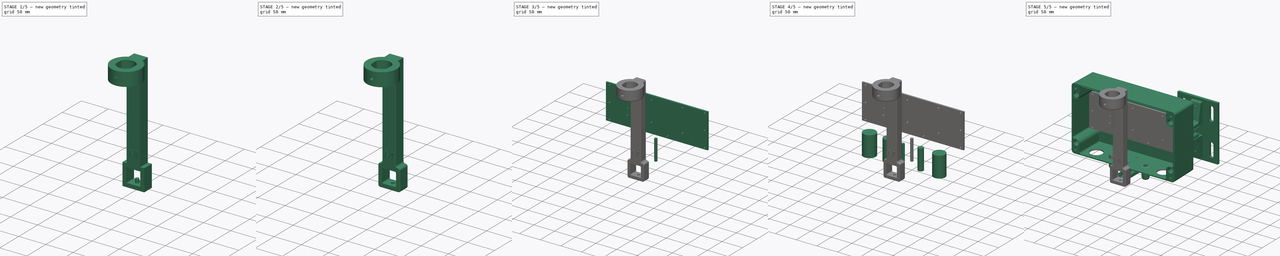
[diagram: build sequence overview — one tinted view per stage of 5, left to right]
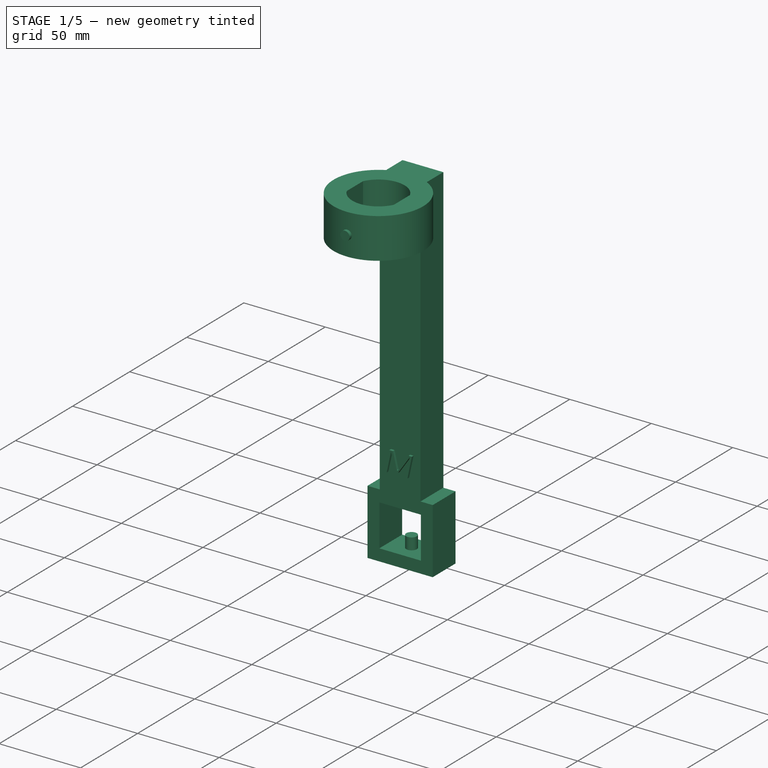
[diagram: stage 1 of 5 — iso view after this stage's code; geometry added in this stage tinted green]
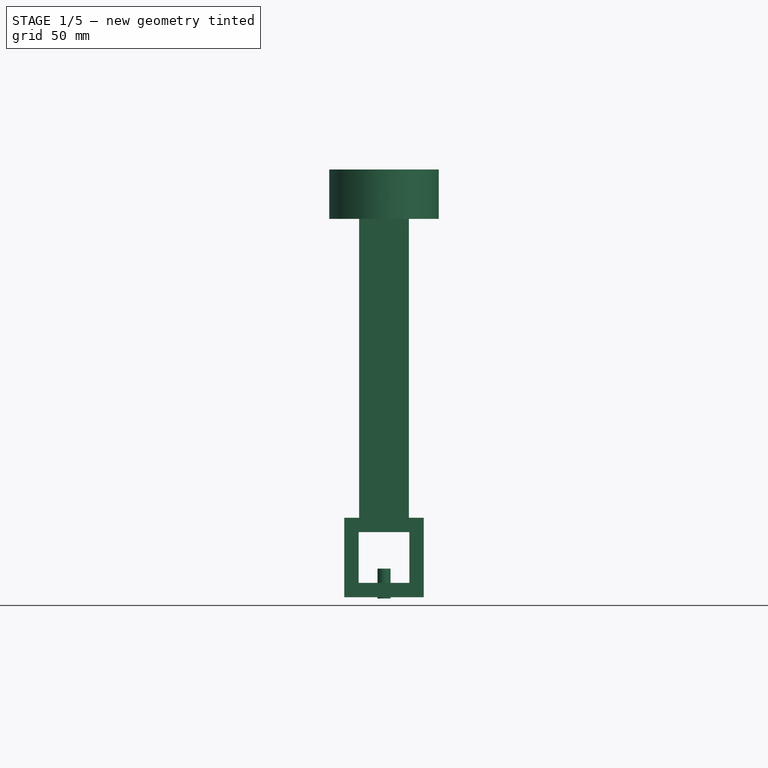
[diagram: stage 1 of 5 — front view after this stage's code; geometry added in this stage tinted green]
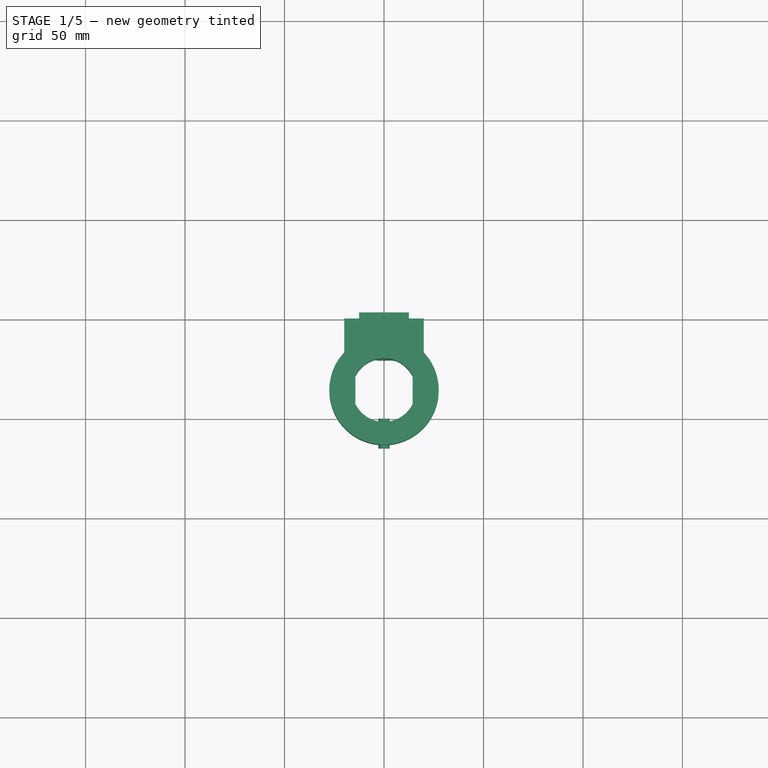
[diagram: stage 1 of 5 — top view after this stage's code; geometry added in this stage tinted green]
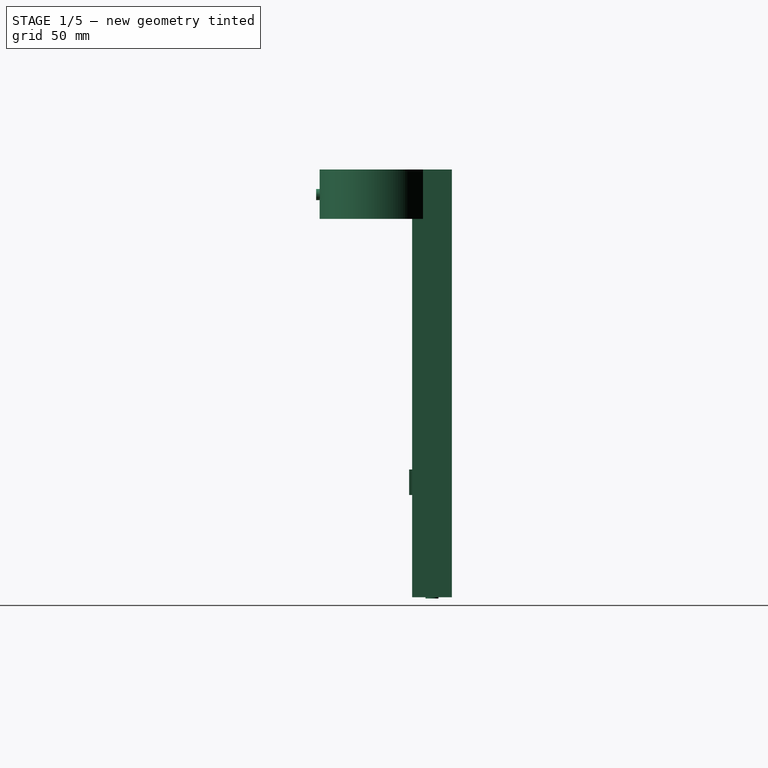
[diagram: stage 1 of 5 — right view after this stage's code; geometry added in this stage tinted green]
FCSTD DOCUMENT  (FreeCAD 0.20R29410 (Git))
Label: poloNodeVA
License: All rights reserved
LicenseURL: http://en.wikipedia.org/wiki/All_rights_reserved
objects: Part::Feature×28, Part::Cylinder×9, Part::MultiFuse×7, Part::Fillet×7, Part::Extrusion×5, Sketcher::SketchObject×4, App::Part×3, Part::Cut×2, Part::Part2DObjectPython×1
note: 63 computed .brp shape members not serialized (recipe doc carries the construction recipe); baked Part::Feature solids carry a one-line shape summary decoded from their .brp

FEATURE [Sketcher::SketchObject] Sketch002
  FullyConstrained = true
  Placement = pos=(0,0,0) rot=(1,0,0;1.5708rad)
  sketch-geometry (12):
    g0: LineSegment StartX=-20 StartY=-121.4 StartZ=0 EndX=-20 EndY=-161.4 EndZ=0
    g1: LineSegment StartX=-20 StartY=-161.4 StartZ=0 EndX=20 EndY=-161.4 EndZ=0
    g2: LineSegment StartX=20 StartY=-161.4 StartZ=0 EndX=20 EndY=-121.4 EndZ=0
    g3: LineSegment StartX=-20 StartY=-121.4 StartZ=0 EndX=-12.5 EndY=-121.4 EndZ=0
    g4: LineSegment StartX=20 StartY=-121.4 StartZ=0 EndX=12.5 EndY=-121.4 EndZ=0
    g5: LineSegment StartX=12.5 StartY=-121.4 StartZ=0 EndX=12.5 EndY=53.6 EndZ=0
    g6: LineSegment StartX=12.5 StartY=53.6 StartZ=0 EndX=-12.5 EndY=53.6 EndZ=0
    g7: LineSegment StartX=-12.5 StartY=53.6 StartZ=0 EndX=-12.5 EndY=-121.4 EndZ=0
    g8: LineSegment StartX=-12.75 StartY=-128.65 StartZ=0 EndX=12.75 EndY=-128.65 EndZ=0
    g9: LineSegment StartX=12.75 StartY=-128.65 StartZ=0 EndX=12.75 EndY=-154.15 EndZ=0
    g10: LineSegment StartX=12.75 StartY=-154.15 StartZ=0 EndX=-12.75 EndY=-154.15 EndZ=0
    g11: LineSegment StartX=-12.75 StartY=-154.15 StartZ=0 EndX=-12.75 EndY=-128.65 EndZ=0
  constraints (36):
    c: Vertical(g0)
    c: Coincident(g1,g0)
    c: Horizontal(g1)
    c: Coincident(g2,g1)
    c: Vertical(g2)
    c: Coincident(g3,g0)
    c: Horizontal(g3)
    c: Coincident(g5,g4)
    c: Vertical(g5)
    c: Coincident(g6,g5)
    c: Coincident(g7,g6)
    c: Vertical(g7)
    c: Coincident(g3,g7)
    c: Coincident(g2,g4)
    c: Horizontal(g4)
    c: DistanceX(g0) = -20
    c: DistanceX(g1) = 20
    c: DistanceX(g0,g3) = 7.5
    c: DistanceX(g4,g2) = 7.5
    c: DistanceY(g0) = -161.4
    c: DistanceY(g0,g0) = 40
    c: Horizontal(g4,g3)
    c: Horizontal(g6)
    c: Coincident(g8,g9)
    c: Coincident(g9,g10)
    c: Coincident(g10,g11)
    c: Coincident(g11,g8)
    c: Horizontal(g8)
    c: Horizontal(g10)
    c: Vertical(g9)
    c: Vertical(g11)
    c: DistanceX(g0,g10) = 7.25
    c: DistanceX(g9,g1) = 7.25
    c: DistanceY(g0,g10) = 7.25
    c: DistanceY(g8,g3) = 7.25
    c: DistanceY(g3,g6) = 175
FEATURE [Part::Extrusion] Extrude002
  Base = -> Sketch002
  Dir = (0,-1,-3e-16)
  DirMode = 2
  FaceMakerClass = Part::FaceMakerBullseye
  LengthFwd = 20
  LengthRev = 0
  Solid = true
  Symmetric = false
FEATURE [Sketcher::SketchObject] Sketch003
  FullyConstrained = true
  Placement = pos=(0,0,23.8) rot=(0,0,1;0rad)
  sketch-geometry (5):
    g0: Circle CenterX=0 CenterY=-36 CenterZ=0 NormalX=0 NormalY=0 NormalZ=1 AngleXU=0 Radius=27.5
    g1: LineSegment StartX=-14.3875 StartY=-29 StartZ=0 EndX=-14.3875 EndY=-43 EndZ=0
    g2: LineSegment StartX=14.3875 StartY=-29 StartZ=0 EndX=14.3875 EndY=-43 EndZ=0
    g3: ArcOfCircle CenterX=0 CenterY=-36 CenterZ=0 NormalX=0 NormalY=0 NormalZ=1 AngleXU=0 Radius=16 StartAngle=0.452817 EndAngle=2.68878
    g4: ArcOfCircle CenterX=0 CenterY=-36 CenterZ=0 NormalX=0 NormalY=0 NormalZ=1 AngleXU=0 Radius=16 StartAngle=3.59441 EndAngle=5.83037
  constraints (15):
    c: Vertical(g1)
    c: Vertical(g2)
    c: Horizontal(g2,g1)
    c: Coincident(g3,g0)
    c: Coincident(g3,g1)
    c: Coincident(g4,g0)
    c: Coincident(g4,g1)
    c: Coincident(g2,g4)
    c: Coincident(g2,g3)
    c: DistanceY(g0,g1) = 7
    c: Diameter(g3) = 32
    c: DistanceX(g0) = 0
    c: DistanceY(g1,g1) = 14
    c: Diameter(g0) = 55
    c: DistanceY(g0) = -36
FEATURE [Part::Extrusion] Extrude003
  Base = -> Sketch003
  Dir = (0,0,1)
  DirMode = 2
  FaceMakerClass = Part::FaceMakerBullseye
  LengthFwd = 24.8
  LengthRev = 0
  Placement = pos=(0,-3,5) rot=(0,0,1;0rad)
  Solid = true
  Symmetric = false
FEATURE [Part::Cylinder] Cylinder039  label="m4HeatSetCut"
  Angle = 360
  AttacherType = Attacher::AttachEngine3D
  FirstAngle = 0
  Height = 15
  Placement = pos=(0,-53.25,41) rot=(1,0,0;1.5708rad)
  Radius = 2.8
  SecondAngle = 0
FEATURE [Part::Cylinder] Cylinder040  label="Cylinder"
  Angle = 360
  AttacherType = Attacher::AttachEngine3D
  FirstAngle = 0
  Height = 15
  Placement = pos=(0,-10,-162) rot=(0,0,1;0rad)
  Radius = 3.25
  SecondAngle = 0
FEATURE [Part::Feature] Part__Feature049  label="47065T139_T-Slotted Framing"
  Placement = pos=(0,-10,-158.5) rot=(0.57735,-0.57735,0.57735;4.18862rad)
  shape: bbox 11.25 x 25.4 x 17.44 mm, 56 faces, 2 solids (baked)
FEATURE [Part::MultiFuse] Fusion014  label="airMarCuts"
  Shapes = -> [Cylinder040,Cylinder039]
FEATURE [Part::Part2DObjectPython] ShapeString  # Draft 2D object (typed FeaturePython)
  FontFile = <userpath>/gitHubRepos/3DMints2023/mslns/fonts/afta-sans/AftaSansThin-Italic.otf
  MakeFace = true
  Placement = pos=(-10,-20,-77) rot=(1,0,0;1.5708rad)
  Size = 8
  String = M
  Tracking = 0
FEATURE [Part::Extrusion] Extrude004
  Base = -> ShapeString
  Dir = (0,-1,2e-16)
  DirMode = 2
  FaceMakerClass = Part::FaceMakerBullseye
  LengthFwd = 2
  LengthRev = 0
  Placement = pos=(0,0.5,-33) rot=(0,0,1;0rad)
  Solid = false
  Symmetric = false
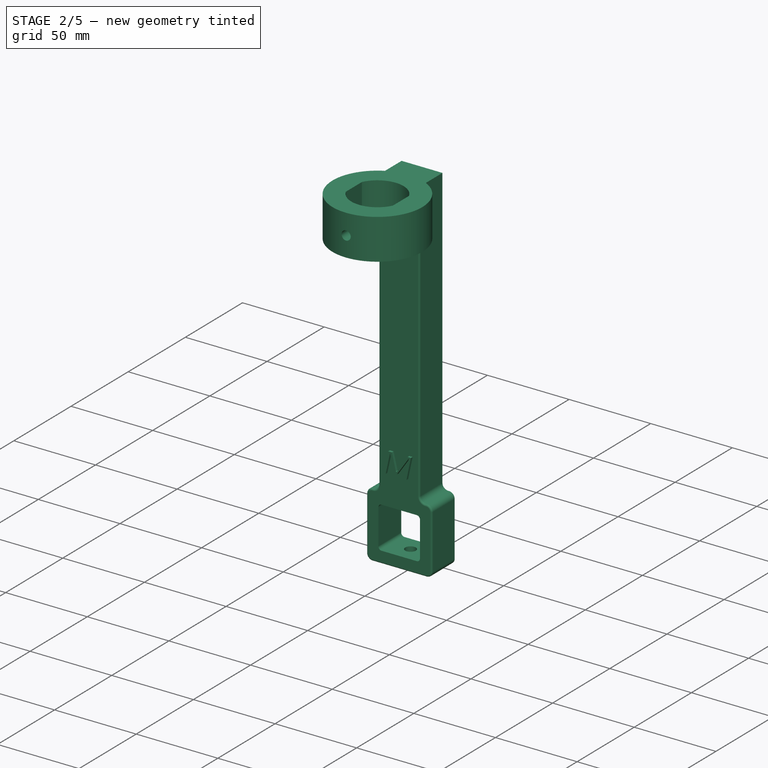
[diagram: stage 2 of 5 — iso view after this stage's code; geometry added in this stage tinted green]
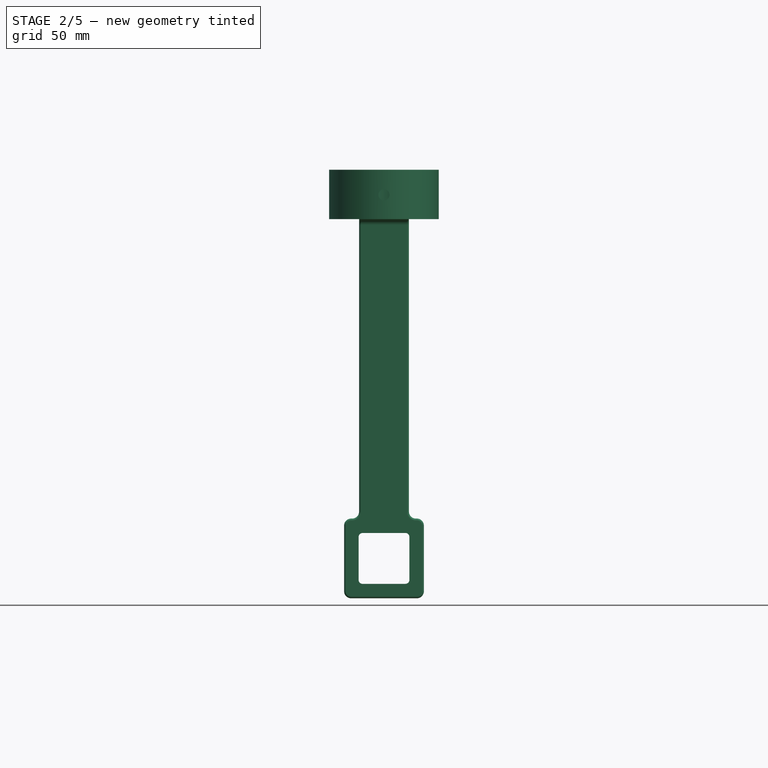
[diagram: stage 2 of 5 — front view after this stage's code; geometry added in this stage tinted green]
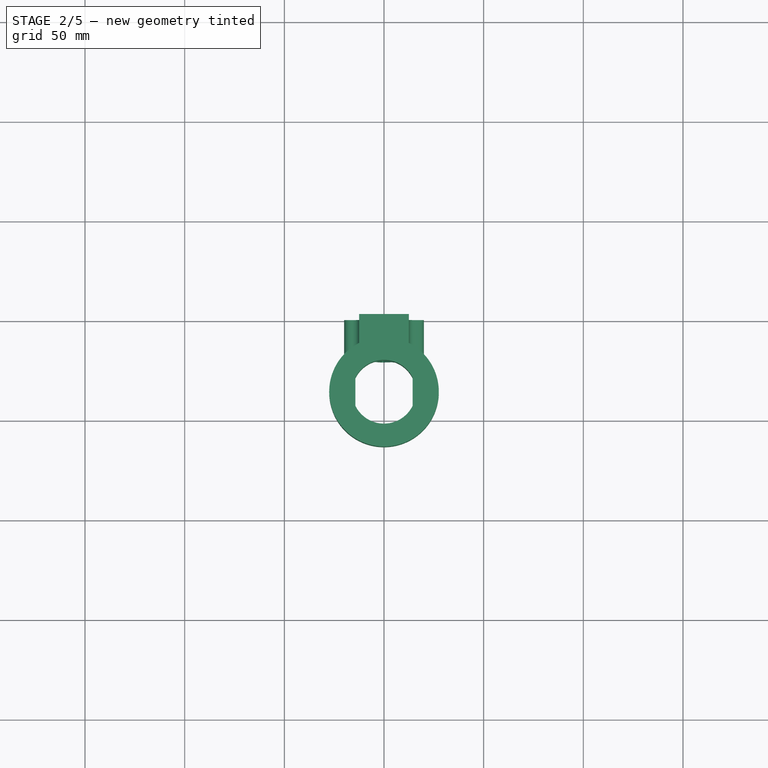
[diagram: stage 2 of 5 — top view after this stage's code; geometry added in this stage tinted green]
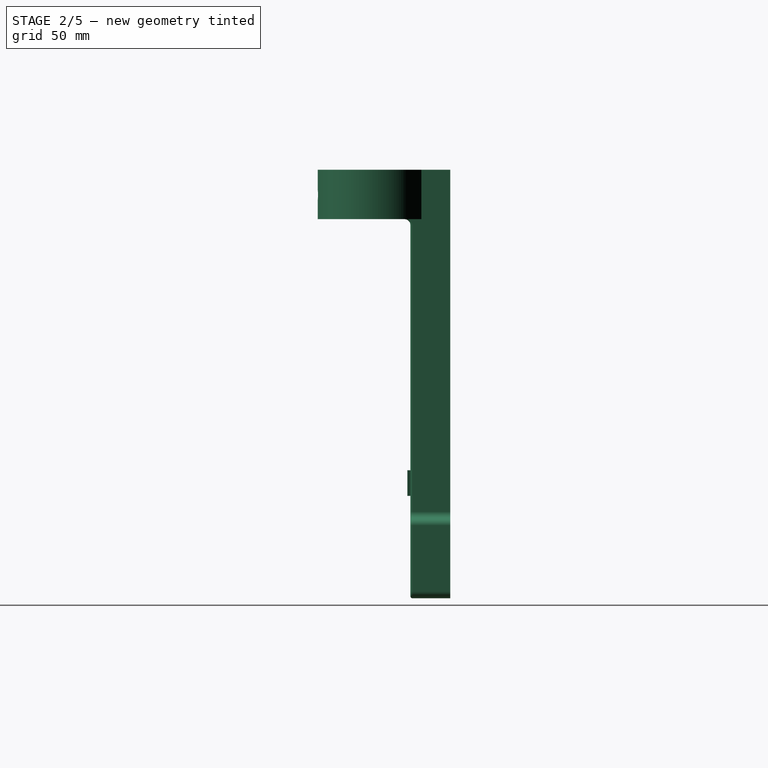
[diagram: stage 2 of 5 — right view after this stage's code; geometry added in this stage tinted green]
FEATURE [Part::MultiFuse] Fusion013  label="airMarHolder"
  Shapes = -> [Extrude002,Extrude003]
FEATURE [Part::Cut] Cut001  label="airMarHolder001"
  Base = -> Fusion013
  Tool = -> Fusion014
FEATURE [Part::Fillet] Fillet
  Base = -> Cut001
  Edges = 1 edges r=3: [Edge24]
FEATURE [Part::Fillet] Fillet001
  Base = -> Fillet
  Edges = 6 edges r=3.5: [Edge19,Edge23,Edge25,Edge31,Edge33,Edge35]
FEATURE [Part::Fillet] Fillet002
  Base = -> Fillet001
  Edges = 4 edges r=2: [Edge57,Edge58,Edge60,Edge62]
FEATURE [Part::Fillet] Fillet003
  Base = -> Fillet002
  Edges = 2 edges r=1: [Edge40,Edge75]
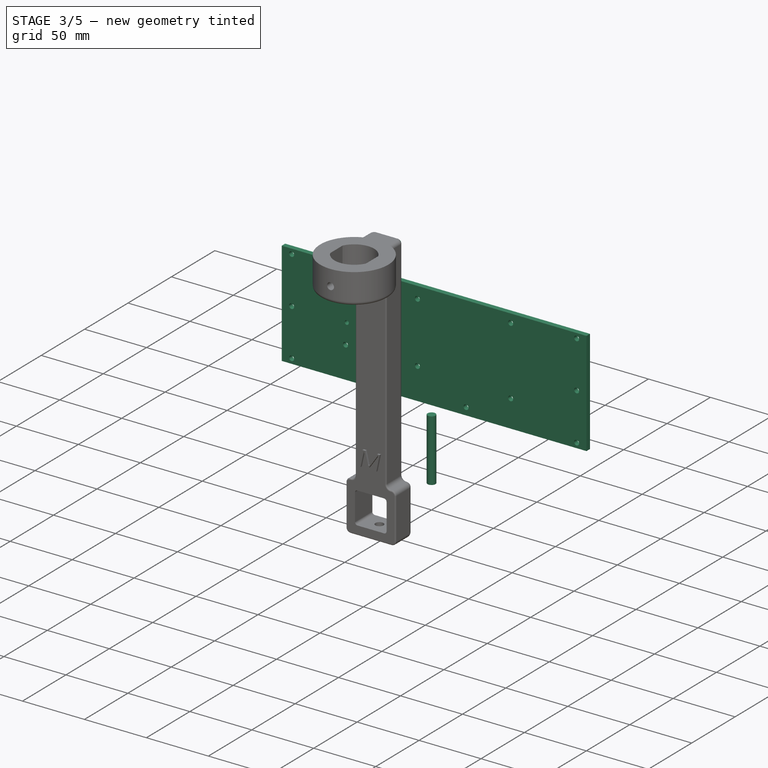
[diagram: stage 3 of 5 — iso view after this stage's code; geometry added in this stage tinted green]
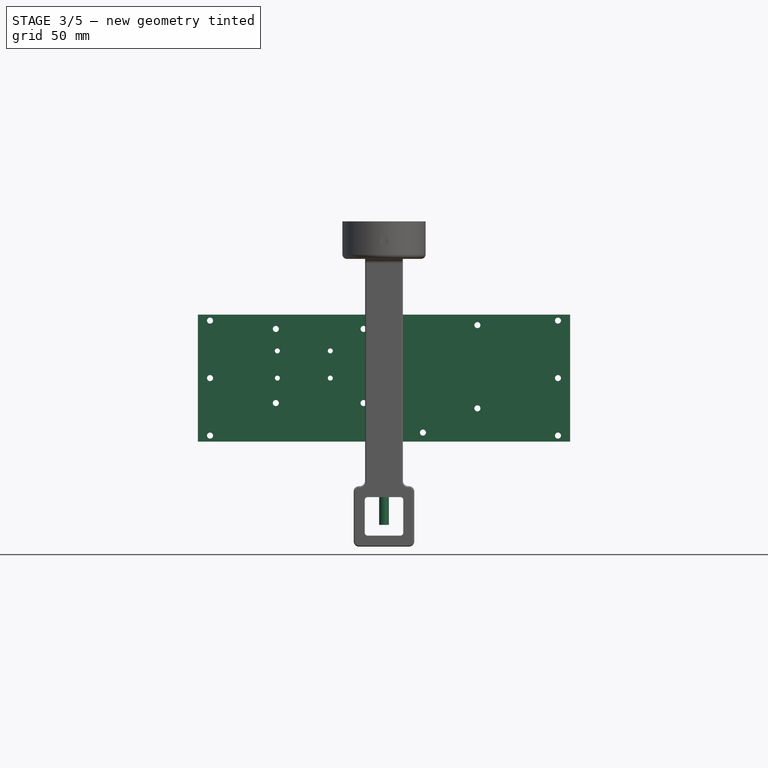
[diagram: stage 3 of 5 — front view after this stage's code; geometry added in this stage tinted green]
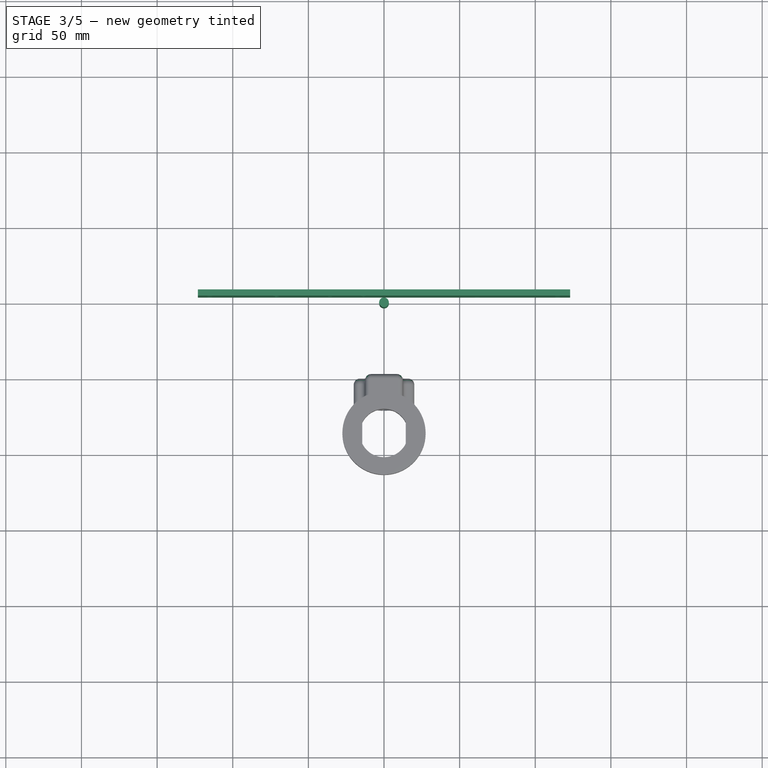
[diagram: stage 3 of 5 — top view after this stage's code; geometry added in this stage tinted green]
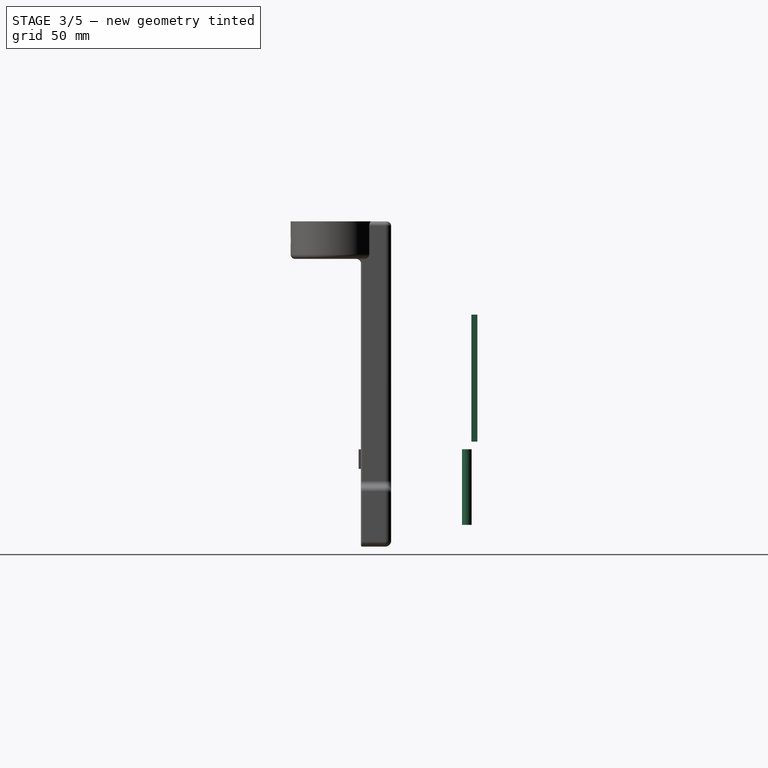
[diagram: stage 3 of 5 — right view after this stage's code; geometry added in this stage tinted green]
FEATURE [Part::Cylinder] Cylinder038  label="m5Cut001"
  Angle = 360
  AttacherType = Attacher::AttachEngine3D
  FirstAngle = 0
  Height = 50
  Placement = pos=(0,50,-147) rot=(0,0,1;0rad)
  Radius = 3.2
  SecondAngle = 0
FEATURE [Part::Feature] Part__Feature  label="CUI_VGS-35C-12"
  Placement = pos=(60,36,-41) rot=(1,0,0;3.14159rad)
  shape: bbox 82.03 x 30.06 x 100 mm, 2215 faces, 10 solids (baked)
FEATURE [Part::Feature] Part__Feature035  label="Open CASCADE STEP translator 7.4 2.1.1"
  shape: bbox 8.3 x 1.9 x 1 mm, 10 faces, 0 solids (baked)
FEATURE [Part::Feature] Part__Feature036  label="Open CASCADE STEP translator 7.4 2.1.2"
  shape: bbox 12.5 x 10 x 1.5 mm, 6 faces, 0 solids (baked)
FEATURE [Part::Feature] Part__Feature037  label="Open CASCADE STEP translator 7.4 2.1.3"
  shape: bbox 12.5 x 10 x 1.5 mm, 6 faces, 0 solids (baked)
FEATURE [Part::Feature] Part__Feature038  label="Open CASCADE STEP translator 7.4 2.1.4"
  shape: bbox 12.5 x 10 x 1.5 mm, 6 faces, 0 solids (baked)
FEATURE [Part::Feature] Part__Feature039  label="Open CASCADE STEP translator 7.4 2.1.5"
  shape: bbox 12.5 x 10 x 1.5 mm, 6 faces, 0 solids (baked)
FEATURE [Part::Feature] Part__Feature040  label="Open CASCADE STEP translator 7.4 2.1.6"
  shape: bbox 89.5 x 57.1 x 20.65 mm, 2741 faces, 0 solids (baked)
FEATURE [App::Part] Open_CASCADE_STEP_translator_7_4_2_1  label="Open CASCADE STEP translator 7.4 2.1"
  Group = -> [Part__Feature035,Part__Feature036,Part__Feature037,Part__Feature038,Part__Feature039,Part__Feature040]
  Origin = -> Origin
FEATURE [App::Part] Open_CASCADE_STEP_translator_7_4_2  label="c4"
  Group = -> [Open_CASCADE_STEP_translator_7_4_2_1]
  Origin = -> Origin001
  Placement = pos=(-75,15,-70) rot=(-1,0,0;4.71239rad)
FEATURE [Part::Feature] Part__Feature041  label="MainBoard"
  shape: bbox 50 x 23 x 1.8 mm, 90 faces (baked)
FEATURE [Part::Feature] Part__Feature042  label="USB Type C Port (SMD Type)"
  Placement = pos=(-18.7,0.12,3.4) rot=(0.707107,-0.707107,0;3.14159rad)
  shape: bbox 7.901 x 8.941 x 4.201 mm, 394 faces, 24 solids (baked)
FEATURE [Part::Feature] Part__Feature043  label="LoRaSTM32Chip"
  Placement = pos=(8.97,0,1.8) rot=(0,0,1;0rad)
  shape: bbox 12 x 12 x 2.5 mm, 68 faces (baked)
FEATURE [Part::Feature] Part__Feature044  label="E10_433M_SMA122"
  Placement = pos=(13,-2.15,1.4) rot=(0,0,1;0rad)
  shape: bbox 11.33 x 1.55 x 1.55 mm, 34 faces (baked)
FEATURE [Part::Feature] Part__Feature045  label="E10_433M_SMA123"
  Placement = pos=(13,-2.15,1.4) rot=(0,0,1;0rad)
  shape: bbox 13.33 x 6.493 x 6.493 mm, 59 faces (baked)
FEATURE [Part::Feature] Part__Feature046  label="CP2012"
  Placement = pos=(-8.75,0.13,1.82) rot=(0,0,1;0rad)
  shape: bbox 4 x 4 x 0.7 mm, 6 faces (baked)
FEATURE [Part::Feature] Part__Feature047  label="u.Fl Antenna Connector - 523-A-1JB"
  Placement = pos=(24.2,5.8,1.8) rot=(0,0.707107,0.707107;3.14159rad)
  shape: bbox 3.1 x 3 x 1.25 mm, 82 faces, 5 solids (baked)
FEATURE [Part::Feature] Part__Feature048  label="Top Traces"
  shape: bbox 49.4 x 23 x 0.02 mm, 7906 faces, 207 solids (baked)
FEATURE [App::Part] LoRa_E5_Mini  label="LoRa-E5-Mini"
  Group = -> [Part__Feature041,Part__Feature042,Part__Feature043,Part__Feature044,Part__Feature045,Part__Feature046,Part__Feature047,Part__Feature048]
  Origin = -> Origin002
  Placement = pos=(-48,50,-41) rot=(0,-0.707107,0.707107;3.14159rad)
FEATURE [Part::Feature] Part__Feature034  label="WiFiAntennaGland001"
  Placement = pos=(-85.25,25,-120) rot=(-1,0,0;1.5708rad)
  shape: bbox 36.99 x 36.69 x 48.04 mm, 518 faces, 0 solids (baked)
FEATURE [Sketcher::SketchObject] Sketch001
  FullyConstrained = true
  Placement = pos=(0,57,0) rot=(1,0,0;1.5708rad)
  sketch-geometry (21):
    g0: LineSegment StartX=-123 StartY=-8 StartZ=0 EndX=123 EndY=-8 EndZ=0
    g1: LineSegment StartX=123 StartY=-8 StartZ=0 EndX=123 EndY=-92 EndZ=0
    g2: LineSegment StartX=123 StartY=-92 StartZ=0 EndX=-123 EndY=-92 EndZ=0
    g3: LineSegment StartX=-123 StartY=-92 StartZ=0 EndX=-123 EndY=-8 EndZ=0
    g4: Circle CenterX=-115 CenterY=-12 CenterZ=0 NormalX=0 NormalY=0 NormalZ=1 AngleXU=0 Radius=2
    g5: Circle CenterX=-115 CenterY=-50 CenterZ=0 NormalX=0 NormalY=0 NormalZ=1 AngleXU=0 Radius=2
    g6: Circle CenterX=-115 CenterY=-88 CenterZ=0 NormalX=0 NormalY=0 NormalZ=1 AngleXU=0 Radius=2
    g7: Circle CenterX=115 CenterY=-88 CenterZ=0 NormalX=0 NormalY=0 NormalZ=1 AngleXU=0 Radius=2
    g8: Circle CenterX=115 CenterY=-50 CenterZ=0 NormalX=0 NormalY=0 NormalZ=1 AngleXU=0 Radius=2
    g9: Circle CenterX=115 CenterY=-12 CenterZ=0 NormalX=0 NormalY=0 NormalZ=1 AngleXU=0 Radius=2
    g10: Circle CenterX=-71.5 CenterY=-17.5 CenterZ=0 NormalX=0 NormalY=0 NormalZ=1 AngleXU=0 Radius=2
    g11: Circle CenterX=-13.5 CenterY=-17.5 CenterZ=0 NormalX=0 NormalY=0 NormalZ=1 AngleXU=0 Radius=2
    g12: Circle CenterX=-13.5 CenterY=-66.5 CenterZ=0 NormalX=0 NormalY=0 NormalZ=1 AngleXU=0 Radius=2
    g13: Circle CenterX=-71.5 CenterY=-66.5 CenterZ=0 NormalX=0 NormalY=0 NormalZ=1 AngleXU=0 Radius=2
    g14: Circle CenterX=61.75 CenterY=-70 CenterZ=0 NormalX=0 NormalY=0 NormalZ=1 AngleXU=0 Radius=2
    g15: Circle CenterX=61.75 CenterY=-15 CenterZ=0 NormalX=0 NormalY=0 NormalZ=1 AngleXU=0 Radius=2
    g16: Circle CenterX=-35.5 CenterY=-32 CenterZ=0 NormalX=0 NormalY=0 NormalZ=1 AngleXU=0 Radius=1.65
    g17: Circle CenterX=-35.5 CenterY=-50 CenterZ=0 NormalX=0 NormalY=0 NormalZ=1 AngleXU=0 Radius=1.65
    g18: Circle CenterX=-70.5 CenterY=-32 CenterZ=0 NormalX=0 NormalY=0 NormalZ=1 AngleXU=0 Radius=1.65
    g19: Circle CenterX=-70.5 CenterY=-50 CenterZ=0 NormalX=0 NormalY=0 NormalZ=1 AngleXU=0 Radius=1.65
    g20: Circle CenterX=25.75 CenterY=-86 CenterZ=0 NormalX=0 NormalY=0 NormalZ=1 AngleXU=0 Radius=2
  constraints (59):
    c: Coincident(g0,g1)
    c: Coincident(g1,g2)
    c: Coincident(g2,g3)
    c: Coincident(g3,g0)
    c: Horizontal(g0)
    c: Horizontal(g2)
    c: Vertical(g1)
    c: Vertical(g3)
    c: DistanceX(g2) = -123
    c: DistanceX(g1) = 123
    c: DistanceY(g3,g3) = 84
    c: DistanceY(g0) = -8
    c: DistanceX(g6) = -115
    c: DistanceX(g5,g6) = 0
    c: DistanceX(g5,g4) = 0
    c: DistanceY(g6) = -88
    c: DistanceY(g4) = -12
    c: DistanceY(g5) = -50
    c: DistanceX(g7) = 115
    c: DistanceX(g7,g8) = 0
    c: DistanceX(g8,g9) = 0
    c: DistanceY(g8,g5) = 0
    c: DistanceY(g7,g6) = 0
    c: DistanceY(g9,g4) = 0
    c: Equal(g4, g5-g9) x5
    c: Radius(g4) = 2
    c: DistanceX(g13) = -71.5
    c: DistanceY(g13) = -66.5
    c: DistanceY(g13,g12) = 0
    c: DistanceX(g13,g12) = 58
    c: DistanceY(g13,g10) = 49
    c: DistanceY(g11,g10) = 0
    c: DistanceY(g19,g17) = 0
    c: DistanceX(g19,g18) = 0
    c: DistanceY(g18,g16) = 0
    c: DistanceX(g17,g16) = 0
    c: DistanceY(g19) = -50
    c: DistanceX(g19) = -70.5
    c: DistanceX(g19,g17) = 35
    c: DistanceY(g17,g16) = 18
    c: Equal(g19,g17)
    c: Equal(g19,g16)
    c: Equal(g19,g18)
    c: Diameter(g19) = 3.3
    c: Equal(g10,g13)
    c: Equal(g10,g12)
    c: Equal(g10,g11)
    c: Diameter(g10) = 4
    c: DistanceX(g10,g13) = 0
    c: DistanceX(g11,g12) = 0
    c: DistanceX(g14) = 61.75
    c: DistanceX(g15,g14) = 0
    c: Equal(g14,g15)
    c: Diameter(g14) = 4
    c: DistanceY(g15) = -15
    c: DistanceY(g14,g15) = 55
    c: Diameter(g20) = 4
    c: DistanceX(g20,g14) = 36
    c: DistanceY(g20,g14) = 16
FEATURE [Part::Extrusion] Extrude001
  Base = -> Sketch001
  Dir = (0,-1,2e-16)
  DirMode = 2
  FaceMakerClass = Part::FaceMakerBullseye
  LengthFwd = 4
  LengthRev = 0
  Solid = true
  Symmetric = false
FEATURE [Part::Fillet] Fillet004
  Base = -> Fillet003
  Edges = 2 edges r=4: [Edge91,Edge96]
FEATURE [Part::Fillet] Fillet005
  Base = -> Fillet004
  Edges = 1 edges r=3: [Edge18]
FEATURE [Part::Fillet] Fillet006  label="airMarHolder002"
  Base = -> Fillet005
  Edges = 1 edges r=3: [Edge26]
FEATURE [Part::MultiFuse] Fusion015  label="airMarHolder003"
  Shapes = -> [Fillet006,Extrude004]
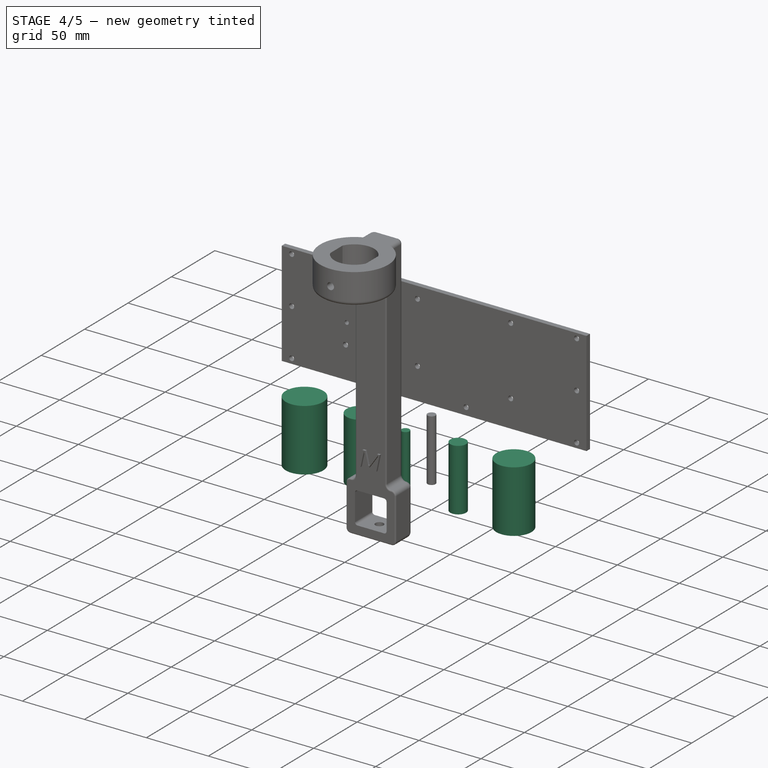
[diagram: stage 4 of 5 — iso view after this stage's code; geometry added in this stage tinted green]
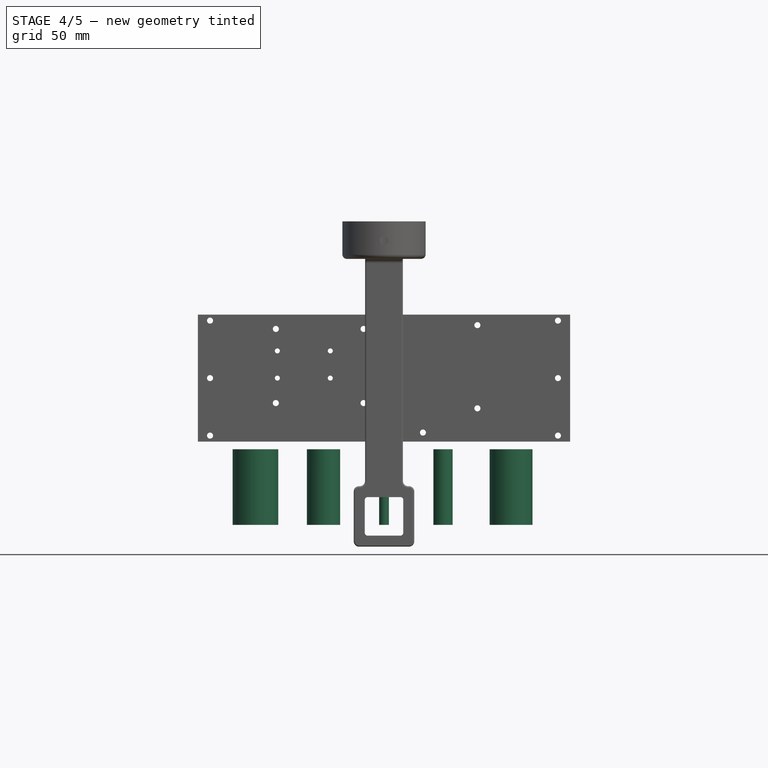
[diagram: stage 4 of 5 — front view after this stage's code; geometry added in this stage tinted green]
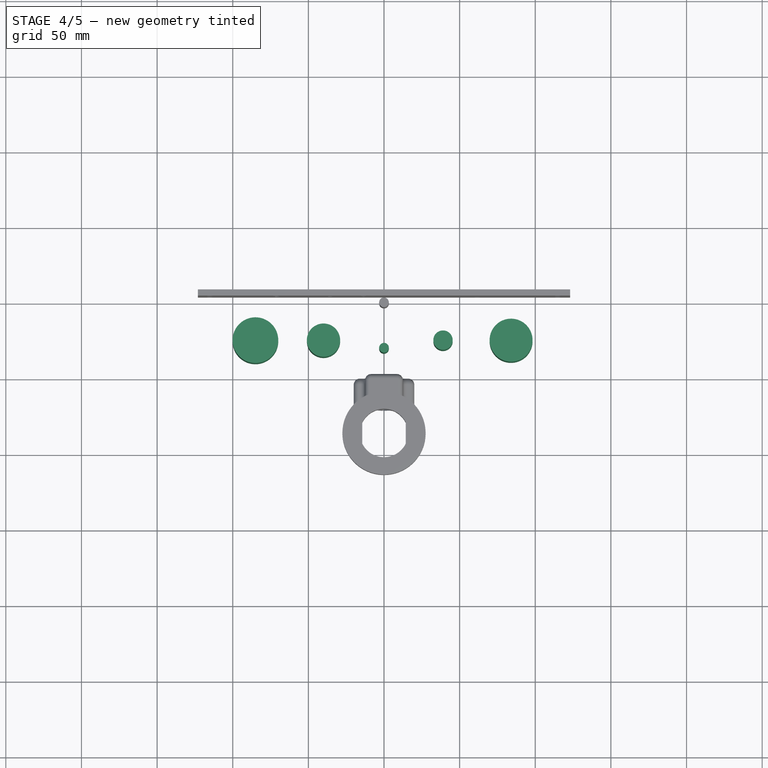
[diagram: stage 4 of 5 — top view after this stage's code; geometry added in this stage tinted green]
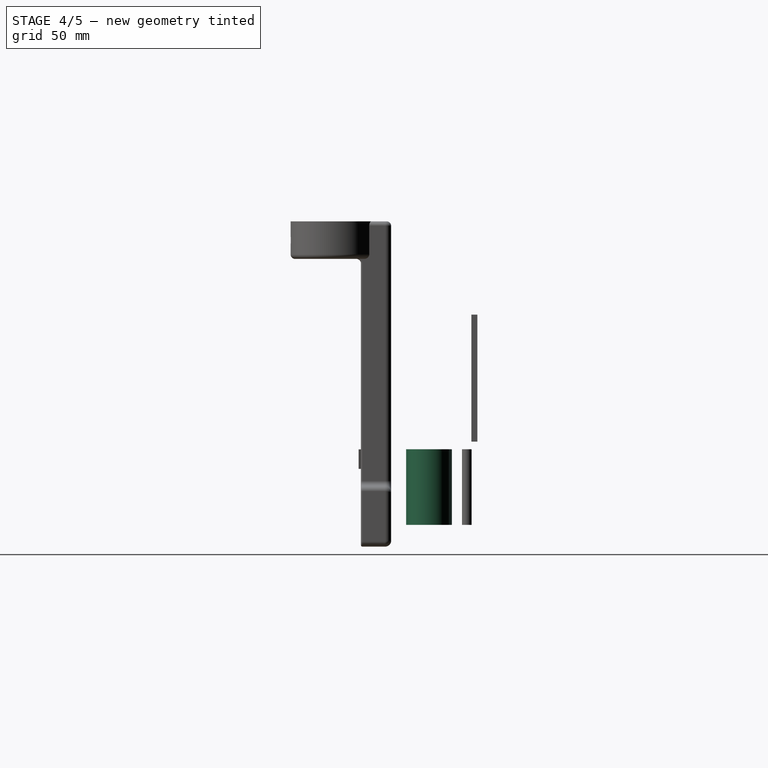
[diagram: stage 4 of 5 — right view after this stage's code; geometry added in this stage tinted green]
FEATURE [Part::Cylinder] Cylinder033  label="EthernetCut"
  Angle = 360
  AttacherType = Attacher::AttachEngine3D
  FirstAngle = 0
  Height = 50
  Placement = pos=(-85,25,-147) rot=(0,0,1;0rad)
  Radius = 15.1
  SecondAngle = 0
FEATURE [Part::Cylinder] Cylinder034  label="PowerCut"
  Angle = 360
  AttacherType = Attacher::AttachEngine3D
  FirstAngle = 0
  Height = 50
  Placement = pos=(-40,25,-147) rot=(0,0,1;0rad)
  Radius = 11
  SecondAngle = 0
FEATURE [Part::Cylinder] Cylinder035  label="pg7Cut"
  Angle = 360
  AttacherType = Attacher::AttachEngine3D
  FirstAngle = 0
  Height = 50
  Placement = pos=(39,25,-147) rot=(0,0,1;0rad)
  Radius = 6.4
  SecondAngle = 0
FEATURE [Part::Cylinder] Cylinder036  label="AnetnnaCut"
  Angle = 360
  AttacherType = Attacher::AttachEngine3D
  FirstAngle = 0
  Height = 50
  Placement = pos=(84,25,-147) rot=(0,0,1;0rad)
  Radius = 14.2
  SecondAngle = 0
FEATURE [Part::Cylinder] Cylinder037  label="m5Cut"
  Angle = 360
  AttacherType = Attacher::AttachEngine3D
  FirstAngle = 0
  Height = 50
  Placement = pos=(0,20,-147) rot=(0,0,1;0rad)
  Radius = 3.2
  SecondAngle = 0
FEATURE [Part::MultiFuse] Fusion012
  Shapes = -> [Cylinder038,Cylinder037,Cylinder036,Cylinder035,Cylinder033,Cylinder034]
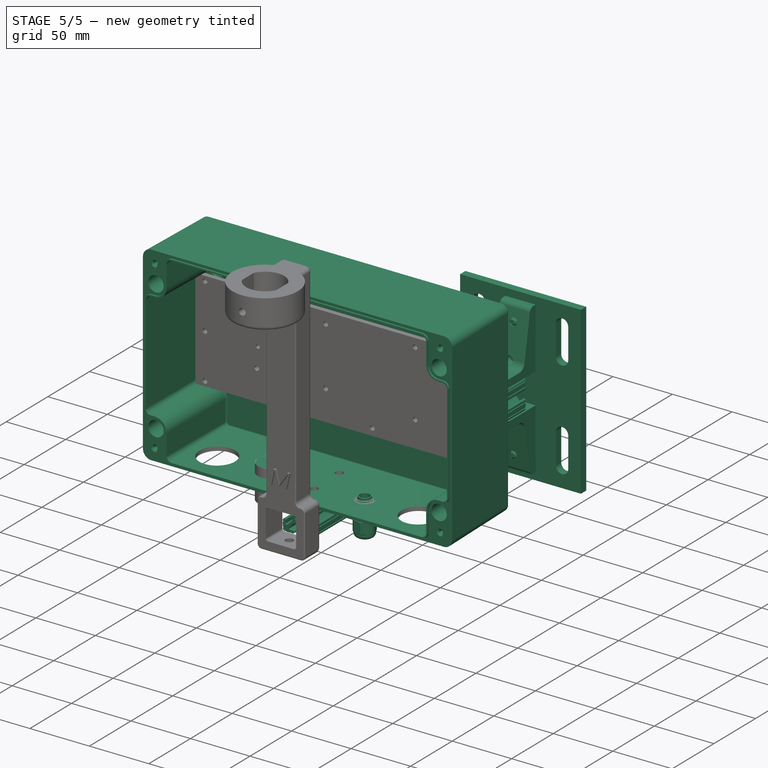
[diagram: stage 5 of 5 — iso view after this stage's code; geometry added in this stage tinted green]
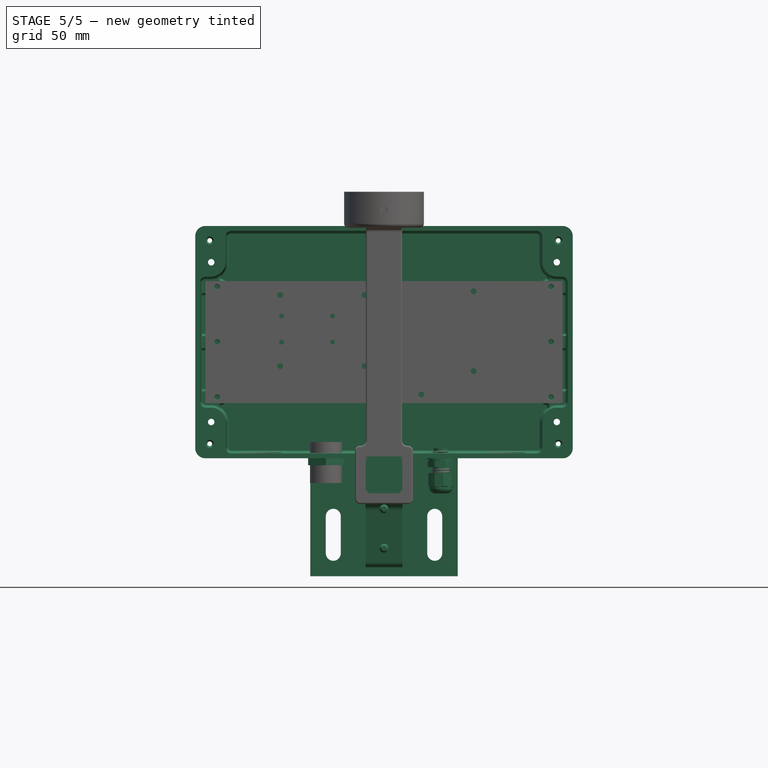
[diagram: stage 5 of 5 — front view after this stage's code; geometry added in this stage tinted green]
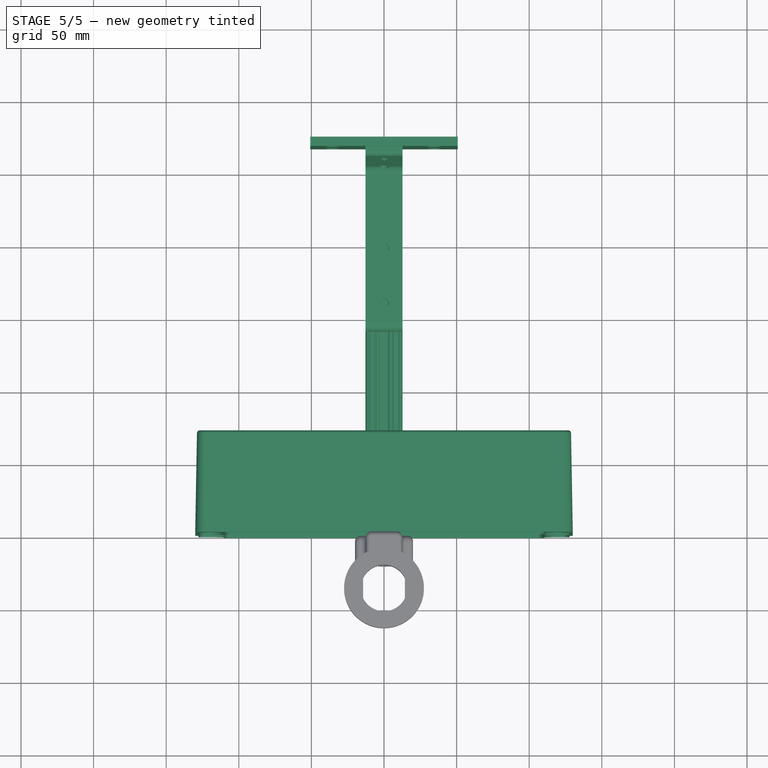
[diagram: stage 5 of 5 — top view after this stage's code; geometry added in this stage tinted green]
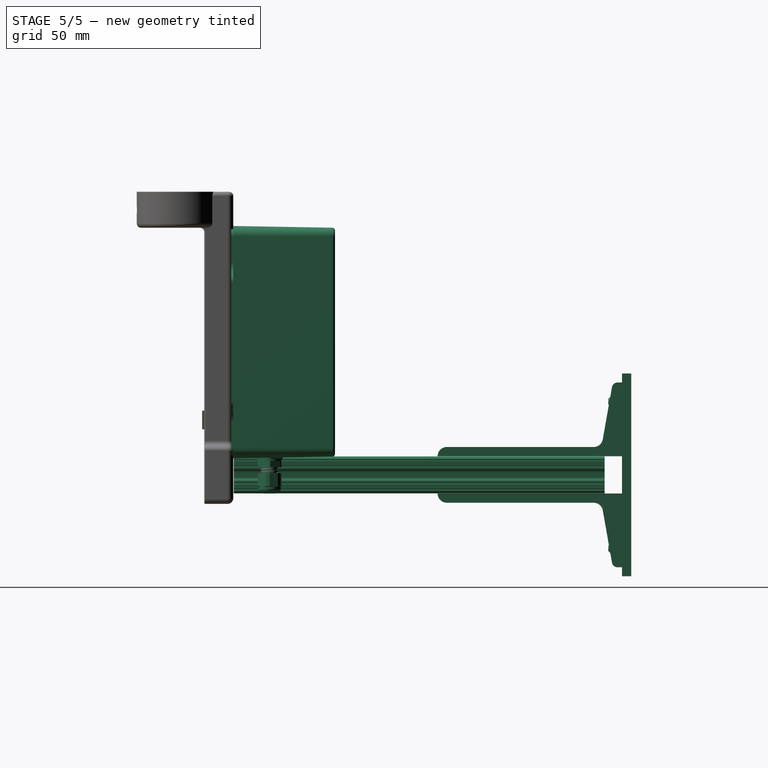
[diagram: stage 5 of 5 — right view after this stage's code; geometry added in this stage tinted green]
FEATURE [Part::Cylinder] Cylinder  label="plugIn"
  Angle = 360
  AttacherType = Attacher::AttachEngine3D
  FirstAngle = 0
  Height = 28.19
  Radius = 11
  SecondAngle = 0
FEATURE [Part::Feature] Part__Feature021  label="WiFiAntennaGland"
  Placement = pos=(84,25,-120) rot=(-1,0,0;1.5708rad)
  shape: bbox 36.99 x 36.69 x 48.04 mm, 518 faces, 0 solids (baked)
FEATURE [Part::Feature] Part__Feature022  label="3136N138_T-Slotted Framing"
  Placement = pos=(0,200.3,0) rot=(0,0,1;0rad)
  shape: bbox 101.6 x 133.4 x 139.7 mm, 136 faces (baked)
FEATURE [Part::Feature] Part__Feature023  label="47065T801_T-Slotted Framing"
  Placement = pos=(0,288.5,0) rot=(-1,0,0;1.5708rad)
  shape: bbox 25.4 x 152.4 x 25.4 mm, 108 faces (baked)
FEATURE [Part::Feature] Part__Feature024  label="47065T801_T-Slotted Framing001"
  Placement = pos=(0,391.5,0) rot=(-1,0,0;1.5708rad)
  shape: bbox 25.4 x 152.4 x 25.4 mm, 108 faces (baked)
FEATURE [Part::MultiFuse] Fusion008  label="framingSupport"
  Placement = pos=(0,468,-141.41) rot=(0,0,1;3.14159rad)
  Shapes = -> [Part__Feature024,Part__Feature022,Part__Feature023]
FEATURE [Part::Feature] Part__Feature025  label="Cable Gland PG7-PG19 Body_PG008"
  shape: bbox 17.67 x 27.9 x 16 mm, 147 faces (baked)
FEATURE [Part::Feature] Part__Feature026  label="Cable Gland PG7-PG19 Washer_PG008"
  Placement = pos=(0,-2.8,0) rot=(0,0,1;0rad)
  shape: bbox 16.6 x 1.2 x 16.6 mm, 6 faces (baked)
FEATURE [Part::Feature] Part__Feature027  label="Cable Gland PG7-PG19 Lock Nut_PG008"
  Placement = pos=(0,-5.6,0) rot=(0,0,1;3.14159rad)
  shape: bbox 19.6 x 5.77 x 19.6 mm, 32 faces (baked)
FEATURE [Part::Feature] Part__Feature028  label="Cable Gland PG7-PG19 Sleeve_PG008"
  Placement = pos=(0,13.65,0) rot=(0,0,1;0rad)
  shape: bbox 8.4 x 6.7 x 8.4 mm, 6 faces (baked)
FEATURE [Part::Feature] Part__Feature029  label="Cable Gland PG7-PG19 Gland Nut_PG008"
  Placement = pos=(0,10.95,0) rot=(0,-1,0;1.94172rad)
  shape: bbox 16.87 x 14 x 16.87 mm, 64 faces (baked)
FEATURE [Part::MultiFuse] Fusion011  label="pg7-Copper"
  Placement = pos=(39,25,-134) rot=(-1,0,0;1.5708rad)
  Shapes = -> [Part__Feature025,Part__Feature026,Part__Feature027,Part__Feature028,Part__Feature029]
FEATURE [Part::Feature] Part__Feature032  label="AN-23B_AN-23BP-002"
  Placement = pos=(0,0,-50) rot=(0.707107,0,-0.707107;3.14159rad)
  shape: bbox 260 x 71.5 x 160 mm, 302 faces (baked)
FEATURE [Part::Cut] Cut  label="polycaseBase"
  Base = -> Part__Feature032
  Tool = -> Fusion012
FEATURE [Part::Feature] Part__Feature033  label="polycaseLid"
  Placement = pos=(0,0,-50) rot=(0.707107,0,0.707107;3.14159rad)
  shape: bbox 260.5 x 20 x 160.5 mm, 243 faces (baked)
FEATURE [Sketcher::SketchObject] Sketch
  FullyConstrained = true
  sketch-geometry (7):
    g0: LineSegment StartX=12.25 StartY=-7.07254 StartZ=0 EndX=12.25 EndY=7.07254 EndZ=0
    g1: LineSegment StartX=12.25 StartY=7.07254 StartZ=0 EndX=0 EndY=14.1451 EndZ=0
    g2: LineSegment StartX=0 StartY=14.1451 StartZ=0 EndX=-12.25 EndY=7.07254 EndZ=0
    g3: LineSegment StartX=-12.25 StartY=7.07254 StartZ=0 EndX=-12.25 EndY=-7.07254 EndZ=0
    g4: LineSegment StartX=-12.25 StartY=-7.07254 StartZ=0 EndX=0 EndY=-14.1451 EndZ=0
    g5: LineSegment StartX=0 StartY=-14.1451 StartZ=0 EndX=12.25 EndY=-7.07254 EndZ=0
    g6: Circle CenterX=0 CenterY=0 CenterZ=0 NormalX=0 NormalY=0 NormalZ=1 AngleXU=0 Radius=14.1451
  constraints (17):
    c: Coincident(g0,g1)
    c: Coincident(g1,g2)
    c: Coincident(g2,g3)
    c: Coincident(g3,g4)
    c: Coincident(g4,g5)
    c: Coincident(g5,g0)
    c: Equal(g0, g1-g5) x5
    c: PointOnObject(g0,g6)
    c: PointOnObject(g1,g6)
    c: PointOnObject(g2,g6)
    c: PointOnObject(g3,g6)
    c: PointOnObject(g4,g6)
    c: PointOnObject(g5,g6)
    c: DistanceY(g6) = 0
    c: DistanceX(g6) = 0
    c: DistanceX(g1) = 0
    c: DistanceX(g2,g0) = 24.5
FEATURE [Part::Extrusion] Extrude
  Base = -> Sketch
  Dir = (0,0,1)
  DirMode = 2
  FaceMakerClass = Part::FaceMakerBullseye
  LengthFwd = 4.83
  LengthRev = 0
  Placement = pos=(0,0,12.19) rot=(0,0,1;0rad)
  Solid = true
  Symmetric = false
FEATURE [Part::MultiFuse] Fusion  label="powerPlug"
  Placement = pos=(-40,25,-147) rot=(0,0,1;0rad)
  Shapes = -> [Cylinder,Extrude]
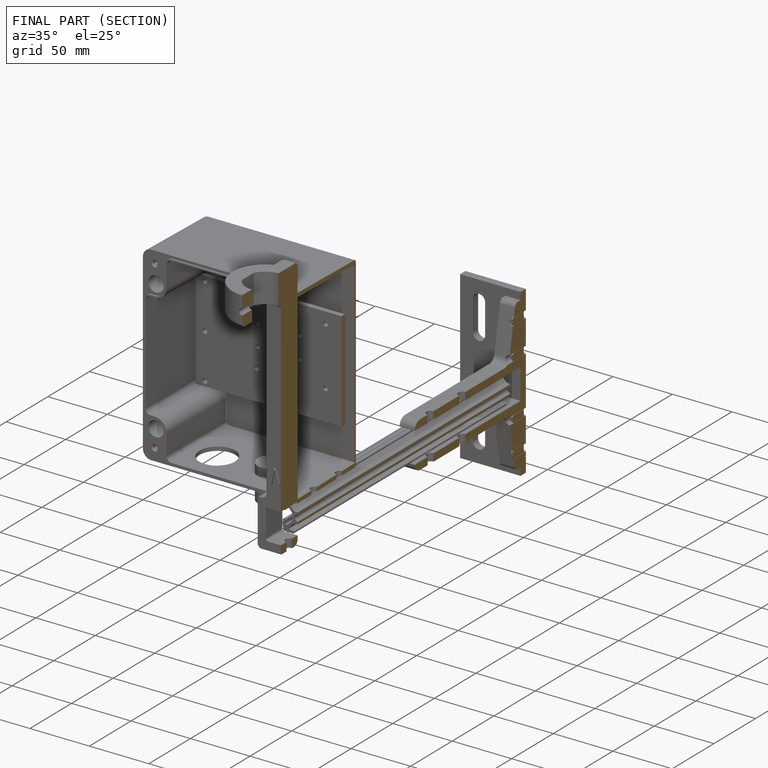
[diagram: finished part — half-section view (interior)]
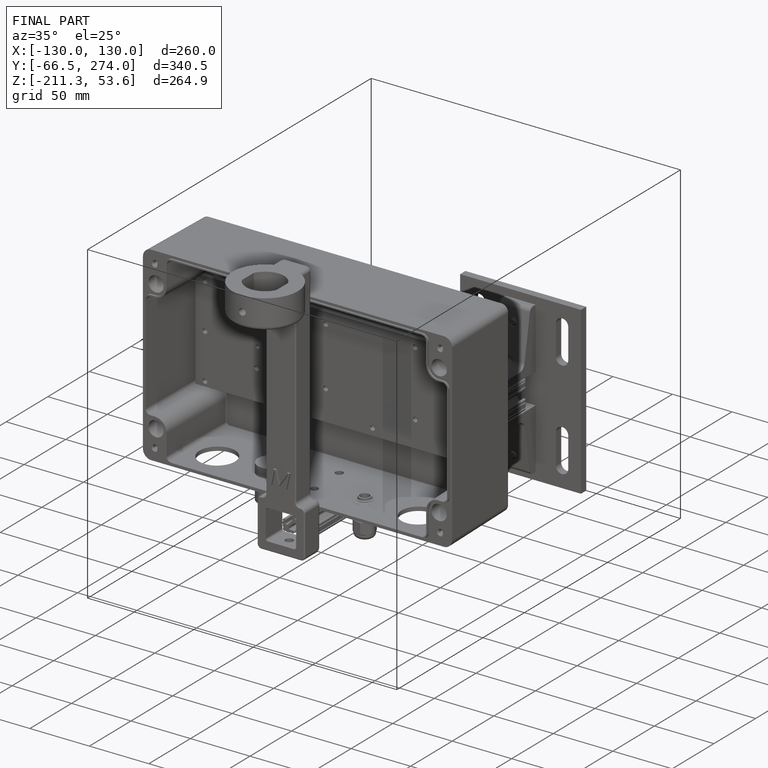
[diagram: finished part — iso view with bounding-box wireframe]
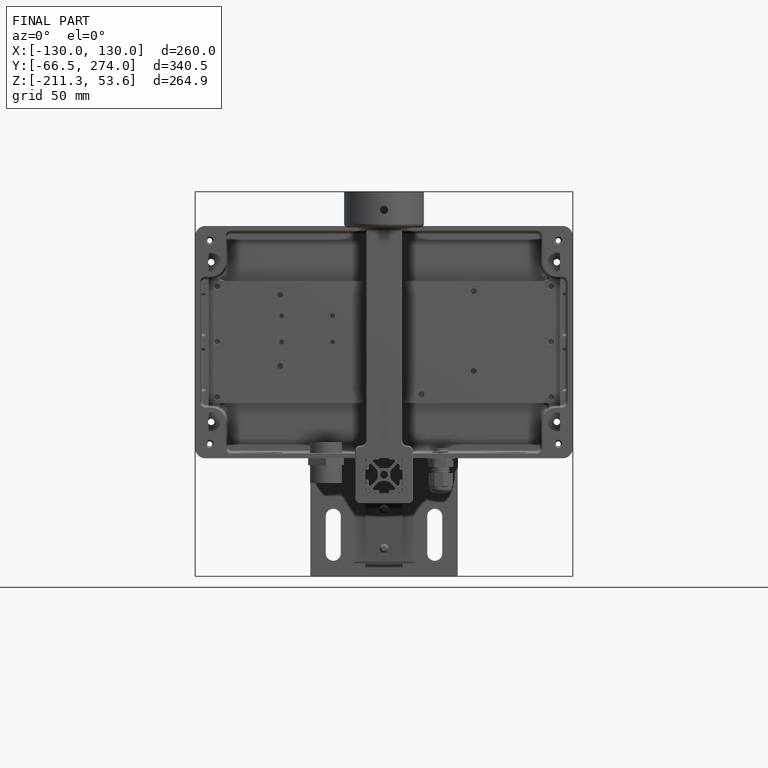
[diagram: finished part — front view with bounding-box wireframe]
